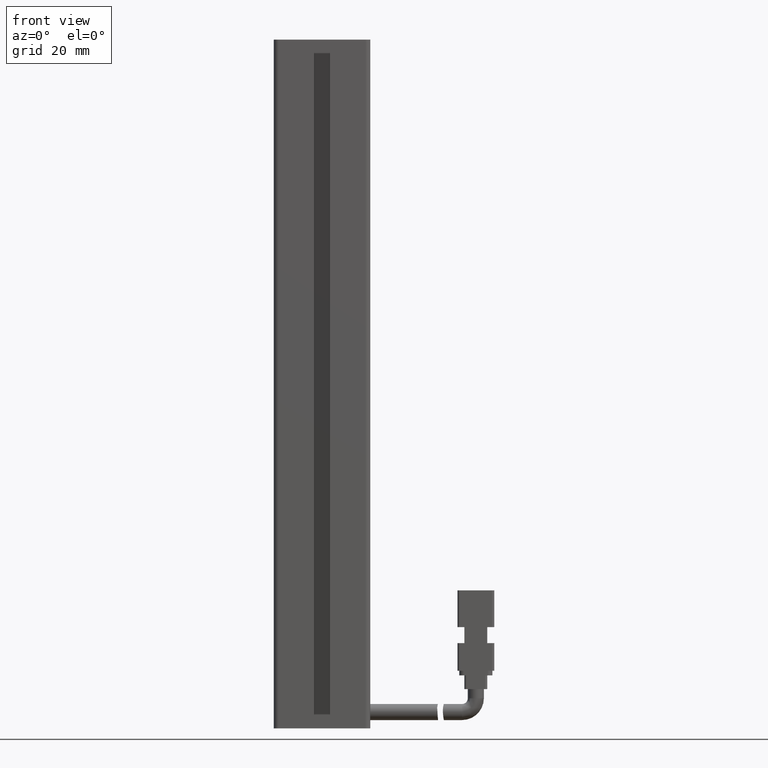
[diagram: clean part render]
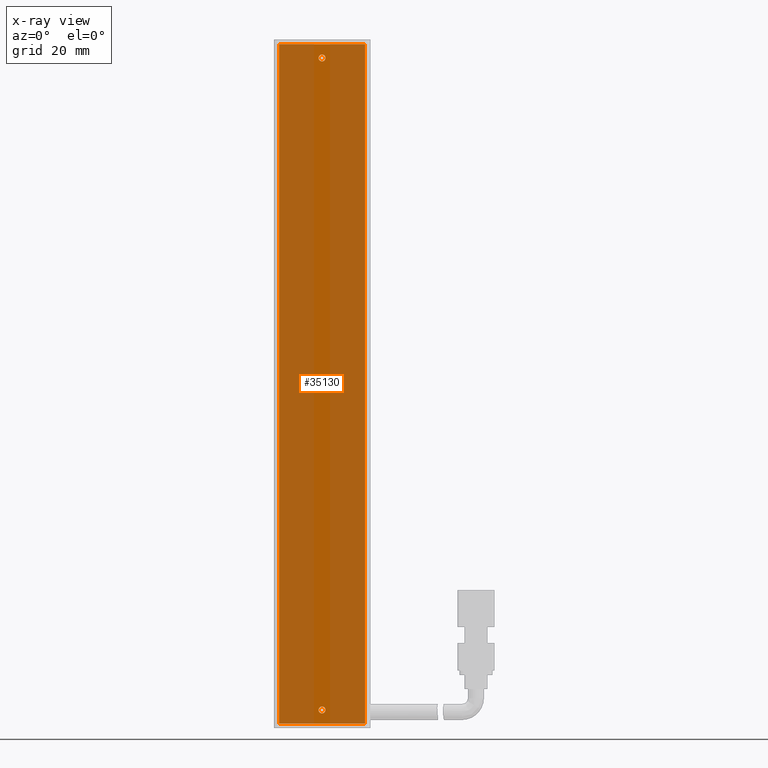
[diagram: x-ray — body ghosted, one internal face saturated and labeled with its STEP entity id]
A machine part, front view, then the same camera in x-ray: the body is ghosted and one INTERNAL B-rep face — a face not visible from any outside direction — is saturated and labeled: STEP entity #35130.
In plain terms, the highlighted planar face has unit normal (-0, 1, 0).
Its self-contained STEP definition (entity closure, byte-faithful):
#587 = DIRECTION ( 'NONE',  ( -0.0000000000000000000, -1.000000000000000000, -0.0000000000000000000 ) ) ;
#601 = DIRECTION ( 'NONE',  ( -0.0000000000000000000, -1.000000000000000000, -0.0000000000000000000 ) ) ;
#1022 = CARTESIAN_POINT ( 'NONE',  ( 40.92537974683541100, 32.09073232304837100, -185.2500000000000000 ) ) ;
#1472 = CIRCLE ( 'NONE', #21022, 0.7500000000000006700 ) ;
#1475 = ORIENTED_EDGE ( 'NONE', *, *, #41111, .F. ) ;
#1533 = EDGE_CURVE ( 'NONE', #2109, #27755, #10013, .T. ) ;
#1727 = LINE ( 'NONE', #34884, #9285 ) ;
#2109 = VERTEX_POINT ( 'NONE', #35598 ) ;
#2130 = DIRECTION ( 'NONE',  ( -0.0000000000000000000, -1.000000000000000000, -0.0000000000000000000 ) ) ;
#2598 = ORIENTED_EDGE ( 'NONE', *, *, #1533, .F. ) ;
#2635 = AXIS2_PLACEMENT_3D ( 'NONE', #14365, #21035, #18587 ) ;
#3842 = DIRECTION ( 'NONE',  ( 0.0000000000000000000, 0.0000000000000000000, 1.000000000000000000 ) ) ;
#4470 = LINE ( 'NONE', #27117, #33485 ) ;
#4567 = EDGE_CURVE ( 'NONE', #32464, #24092, #1472, .T. ) ;
#5336 = DIRECTION ( 'NONE',  ( 0.0000000000000000000, 0.0000000000000000000, 1.000000000000000000 ) ) ;
#5413 = EDGE_CURVE ( 'NONE', #24092, #32464, #27685, .T. ) ;
#5831 = ORIENTED_EDGE ( 'NONE', *, *, #32148, .F. ) ;
#6672 = CARTESIAN_POINT ( 'NONE',  ( 40.92537974683541800, 32.09073232304837100, -44.75000000000001400 ) ) ;
#7652 = DIRECTION ( 'NONE',  ( 1.548860246407863500E-017, 0.0000000000000000000, 1.000000000000000000 ) ) ;
#8145 = VERTEX_POINT ( 'NONE', #31577 ) ;
#8214 = CARTESIAN_POINT ( 'NONE',  ( 40.92537974683541100, 32.09073232304837100, -186.7500000000000000 ) ) ;
#8460 = VERTEX_POINT ( 'NONE', #26711 ) ;
#9285 = VECTOR ( 'NONE', #21477, 1000.000000000000000 ) ;
#9965 = AXIS2_PLACEMENT_3D ( 'NONE', #20016, #601, #3842 ) ;
#10013 = LINE ( 'NONE', #36299, #14582 ) ;
#10203 = ORIENTED_EDGE ( 'NONE', *, *, #27391, .F. ) ;
#10707 = ORIENTED_EDGE ( 'NONE', *, *, #4567, .F. ) ;
#10976 = EDGE_CURVE ( 'NONE', #8460, #2109, #1727, .T. ) ;
#10996 = AXIS2_PLACEMENT_3D ( 'NONE', #33827, #17273, #7652 ) ;
#13969 = CARTESIAN_POINT ( 'NONE',  ( 50.27537974683542600, 32.09073232304837100, -41.00000000000000700 ) ) ;
#14365 = CARTESIAN_POINT ( 'NONE',  ( 40.92537974683541100, 32.09073232304837100, -186.0000000000000000 ) ) ;
#14557 = ORIENTED_EDGE ( 'NONE', *, *, #10976, .F. ) ;
#14582 = VECTOR ( 'NONE', #39564, 1000.000000000000000 ) ;
#16747 = DIRECTION ( 'NONE',  ( 0.0000000000000000000, 0.0000000000000000000, 1.000000000000000000 ) ) ;
#17273 = DIRECTION ( 'NONE',  ( -0.0000000000000000000, 1.000000000000000000, 0.0000000000000000000 ) ) ;
#17419 = CARTESIAN_POINT ( 'NONE',  ( 50.27537974683542600, 32.09073232304837100, -41.00000000000000700 ) ) ;
#17858 = ORIENTED_EDGE ( 'NONE', *, *, #5413, .F. ) ;
#18587 = DIRECTION ( 'NONE',  ( 0.0000000000000000000, 0.0000000000000000000, 1.000000000000000000 ) ) ;
#19627 = EDGE_CURVE ( 'NONE', #27755, #8145, #25036, .T. ) ;
#19647 = EDGE_LOOP ( 'NONE', ( #17858, #10707 ) ) ;
#19945 = FACE_OUTER_BOUND ( 'NONE', #25067, .T. ) ;
#20016 = CARTESIAN_POINT ( 'NONE',  ( 40.92537974683541100, 32.09073232304837100, -186.0000000000000000 ) ) ;
#20355 = ORIENTED_EDGE ( 'NONE', *, *, #19627, .F. ) ;
#20450 = FACE_BOUND ( 'NONE', #24101, .T. ) ;
#20711 = DIRECTION ( 'NONE',  ( -1.548860246407863500E-017, -0.0000000000000000000, -1.000000000000000000 ) ) ;
#21022 = AXIS2_PLACEMENT_3D ( 'NONE', #34666, #2130, #5336 ) ;
#21035 = DIRECTION ( 'NONE',  ( -0.0000000000000000000, -1.000000000000000000, -0.0000000000000000000 ) ) ;
#21096 = CARTESIAN_POINT ( 'NONE',  ( 40.92537974683541800, 32.09073232304837100, -43.25000000000001400 ) ) ;
#21477 = DIRECTION ( 'NONE',  ( 1.548860246407863500E-017, 0.0000000000000000000, 1.000000000000000000 ) ) ;
#21915 = CIRCLE ( 'NONE', #2635, 0.7500000000000006700 ) ;
#23506 = AXIS2_PLACEMENT_3D ( 'NONE', #39695, #587, #16747 ) ;
#23550 = PLANE ( 'NONE',  #10996 ) ;
#24092 = VERTEX_POINT ( 'NONE', #21096 ) ;
#24101 = EDGE_LOOP ( 'NONE', ( #5831, #1475 ) ) ;
#25036 = LINE ( 'NONE', #17419, #33176 ) ;
#25067 = EDGE_LOOP ( 'NONE', ( #14557, #10203, #20355, #2598 ) ) ;
#26711 = CARTESIAN_POINT ( 'NONE',  ( 31.57537974683540600, 32.09073232304837100, -189.0000000000000000 ) ) ;
#27117 = CARTESIAN_POINT ( 'NONE',  ( 50.27537974683541900, 32.09073232304837100, -189.0000000000000000 ) ) ;
#27391 = EDGE_CURVE ( 'NONE', #8145, #8460, #4470, .T. ) ;
#27644 = DIRECTION ( 'NONE',  ( -1.000000000000000000, -0.0000000000000000000, 1.548860246407863500E-017 ) ) ;
#27685 = CIRCLE ( 'NONE', #23506, 0.7500000000000006700 ) ;
#27755 = VERTEX_POINT ( 'NONE', #13969 ) ;
#29774 = VERTEX_POINT ( 'NONE', #1022 ) ;
#31407 = VERTEX_POINT ( 'NONE', #8214 ) ;
#31577 = CARTESIAN_POINT ( 'NONE',  ( 50.27537974683540500, 32.09073232304837100, -189.0000000000000000 ) ) ;
#32148 = EDGE_CURVE ( 'NONE', #29774, #31407, #21915, .T. ) ;
#32464 = VERTEX_POINT ( 'NONE', #6672 ) ;
#33176 = VECTOR ( 'NONE', #20711, 1000.000000000000000 ) ;
#33485 = VECTOR ( 'NONE', #27644, 1000.000000000000000 ) ;
#33827 = CARTESIAN_POINT ( 'NONE',  ( 50.27537974683542600, 32.09073232304837100, -41.00000000000000700 ) ) ;
#34248 = FACE_BOUND ( 'NONE', #19647, .T. ) ;
#34666 = CARTESIAN_POINT ( 'NONE',  ( 40.92537974683541800, 32.09073232304837100, -44.00000000000001400 ) ) ;
#34884 = CARTESIAN_POINT ( 'NONE',  ( 31.57537974683541300, 32.09073232304837100, -41.00000000000000700 ) ) ;
#35130 = ADVANCED_FACE ( 'NONE', ( #19945, #34248, #20450 ), #23550, .F. ) ;
#35598 = CARTESIAN_POINT ( 'NONE',  ( 31.57537974683542000, 32.09073232304837100, -41.00000000000000700 ) ) ;
#36299 = CARTESIAN_POINT ( 'NONE',  ( 50.27537974683542600, 32.09073232304837100, -41.00000000000000700 ) ) ;
#38703 = CIRCLE ( 'NONE', #9965, 0.7500000000000006700 ) ;
#39564 = DIRECTION ( 'NONE',  ( 1.000000000000000000, 0.0000000000000000000, -1.548860246407863500E-017 ) ) ;
#39695 = CARTESIAN_POINT ( 'NONE',  ( 40.92537974683541800, 32.09073232304837100, -44.00000000000001400 ) ) ;
#41111 = EDGE_CURVE ( 'NONE', #31407, #29774, #38703, .T. ) ;